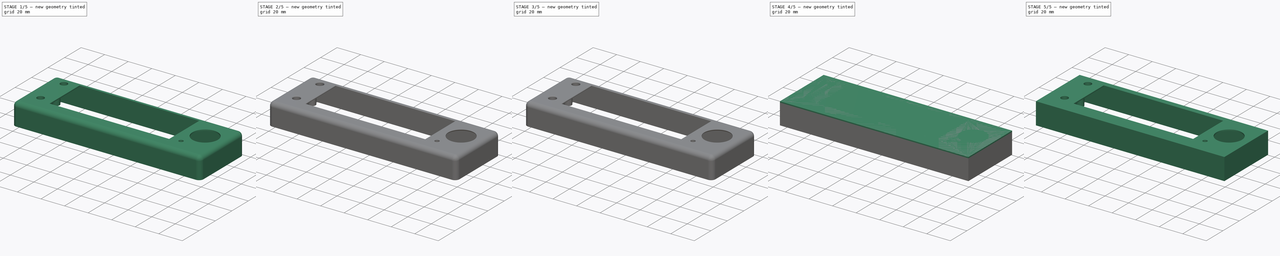
[diagram: build sequence overview — one tinted view per stage of 5, left to right]
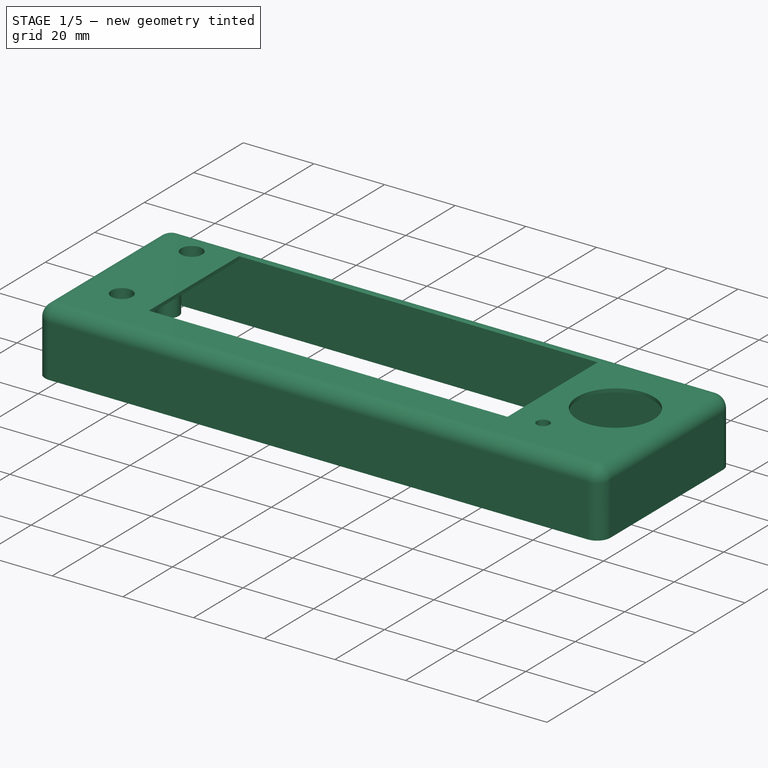
[diagram: stage 1 of 5 — iso view after this stage's code; geometry added in this stage tinted green]
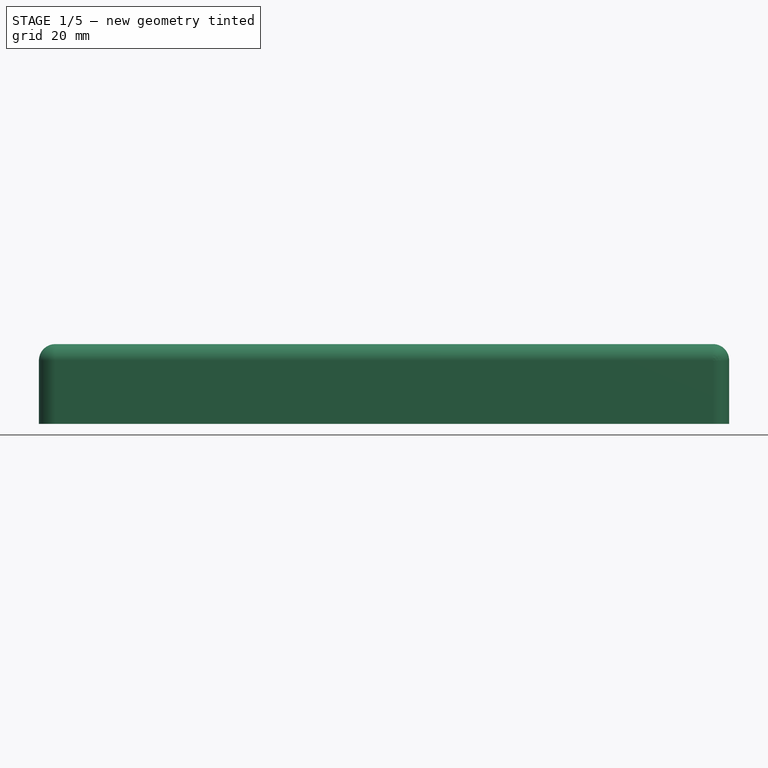
[diagram: stage 1 of 5 — front view after this stage's code; geometry added in this stage tinted green]
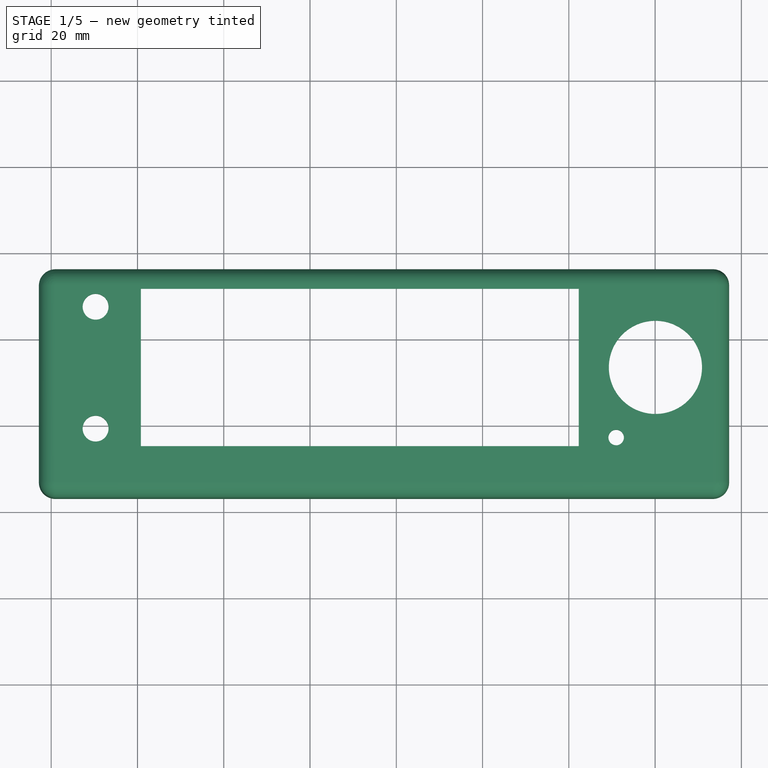
[diagram: stage 1 of 5 — top view after this stage's code; geometry added in this stage tinted green]
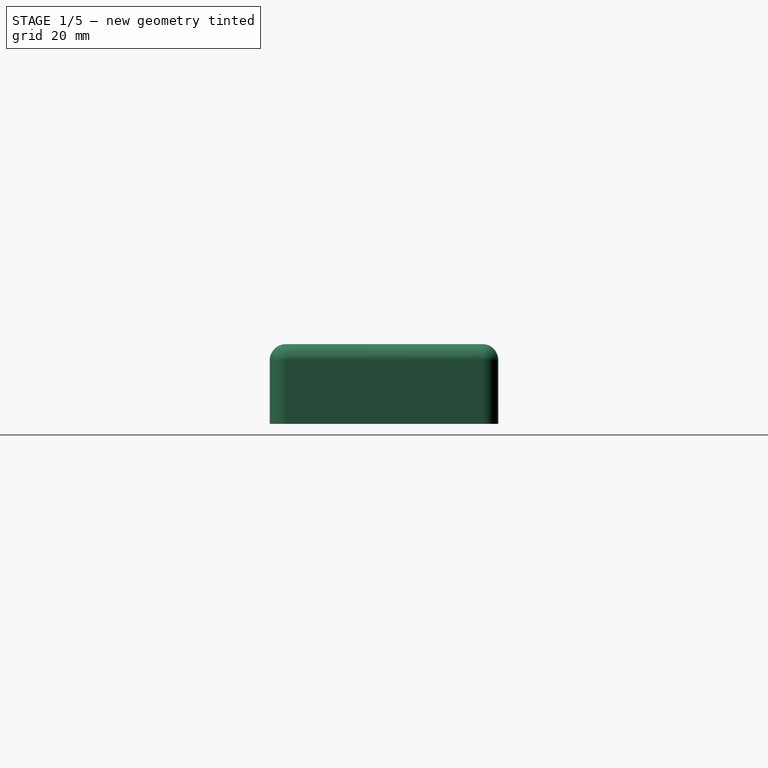
[diagram: stage 1 of 5 — right view after this stage's code; geometry added in this stage tinted green]
FCSTD DOCUMENT  (FreeCAD 0.15R4671 (Git))
Label: top_part
License: All rights reserved
LicenseURL: http://en.wikipedia.org/wiki/All_rights_reserved
objects: PartDesign::Fillet×16, Sketcher::SketchObject×9, PartDesign::Pad×6, PartDesign::Pocket×3, Part::Feature×3, PartDesign::Chamfer×2
note: 48 computed .brp shape members not serialized (recipe doc carries the construction recipe); baked Part::Feature solids carry a one-line shape summary decoded from their .brp

FEATURE [Part::Feature] Pocket003
  shape: bbox 160 x 53 x 18.5 mm, 81 faces (baked)
FEATURE [PartDesign::Fillet] Fillet
  Base = -> Pocket003 [Edge57,Edge158,Edge59,Edge159]
  Radius = 3.7
FEATURE [PartDesign::Fillet] Fillet001
  Base = -> Fillet [Edge24,Edge25,Edge3]
  Radius = 3.8
FEATURE [PartDesign::Fillet] Fillet002
  Base = -> Fillet001 [Edge1,Edge15,Edge13,Edge14,Edge16]
  Radius = 3.8
FEATURE [PartDesign::Fillet] Fillet003
  Base = -> Fillet002 [Edge27,Edge25,Edge39]
  Radius = 0.9
FEATURE [PartDesign::Fillet] Fillet004
  Base = -> Fillet003 [Edge60]
  Radius = 3
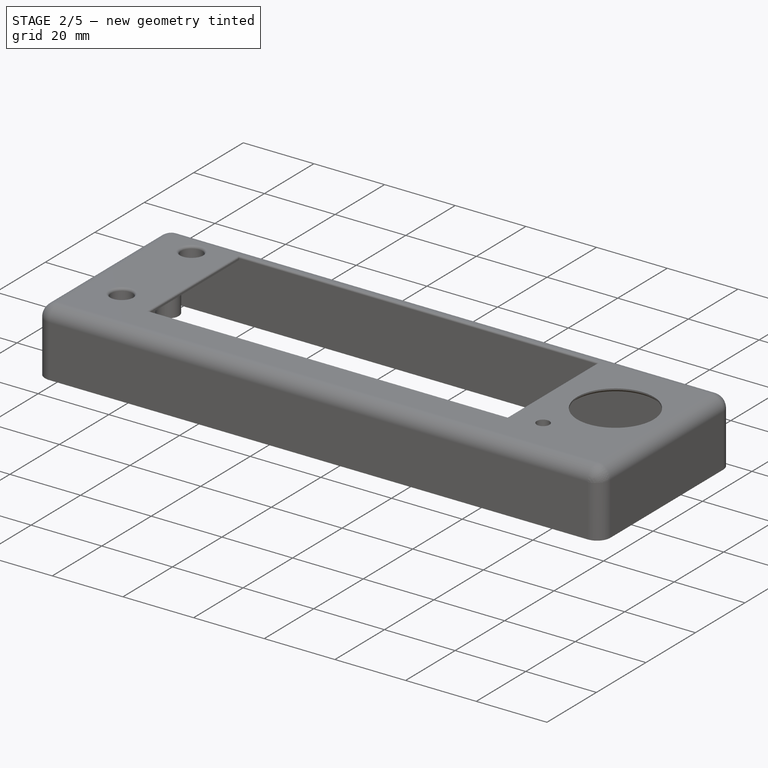
[diagram: stage 2 of 5 — iso view after this stage's code; geometry added in this stage tinted green]
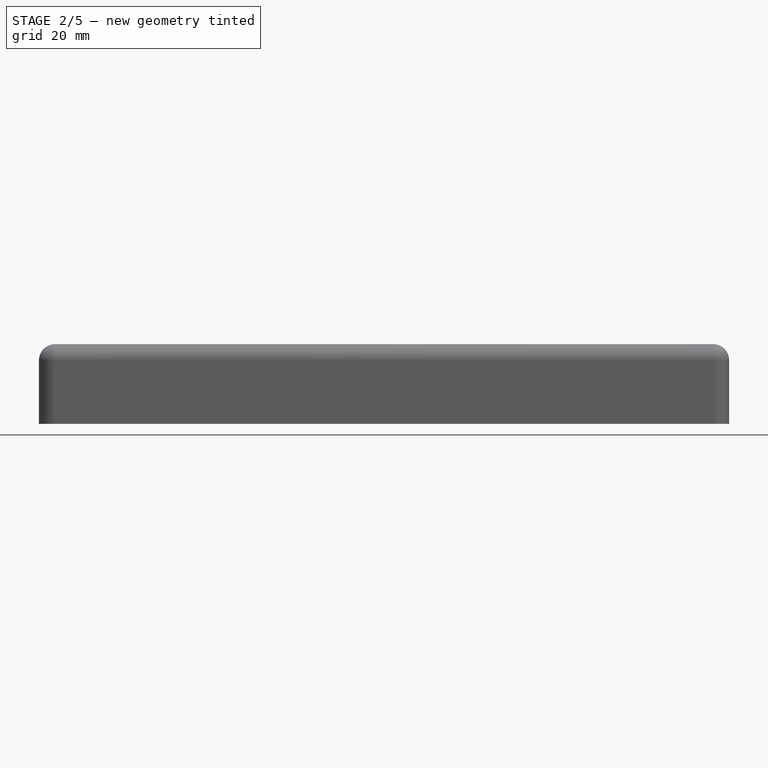
[diagram: stage 2 of 5 — front view after this stage's code; geometry added in this stage tinted green]
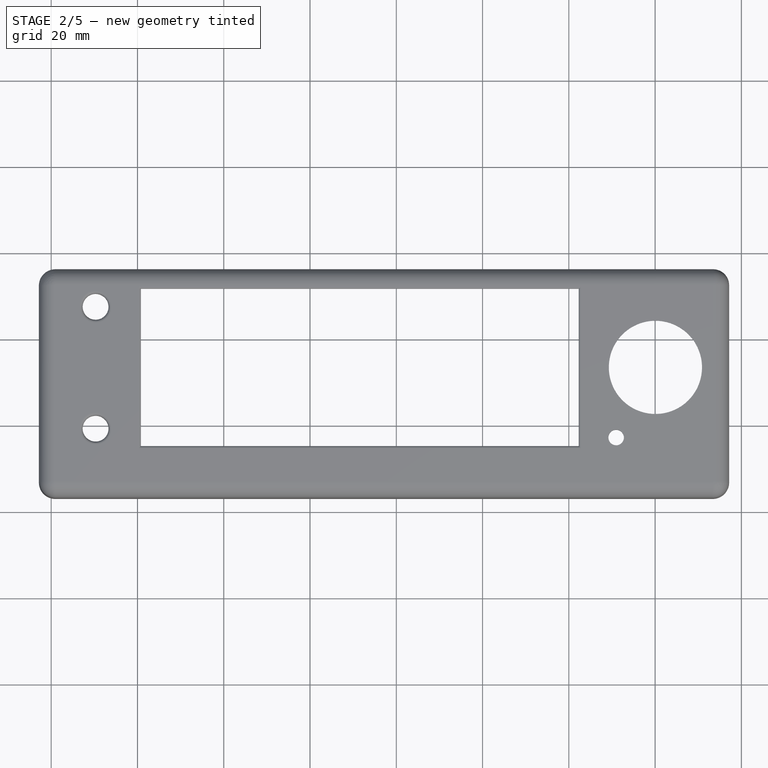
[diagram: stage 2 of 5 — top view after this stage's code; geometry added in this stage tinted green]
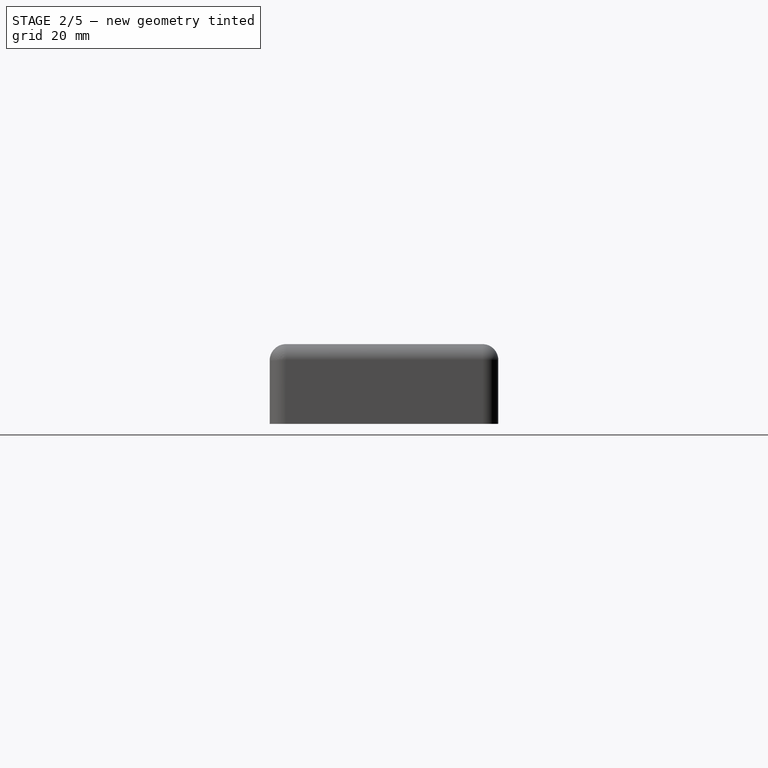
[diagram: stage 2 of 5 — right view after this stage's code; geometry added in this stage tinted green]
FEATURE [PartDesign::Fillet] Fillet005
  Base = -> Fillet004 [Edge46]
  Radius = 3
FEATURE [PartDesign::Chamfer] Chamfer
  Base = -> Fillet005 [Edge34]
  Size = 0.6
FEATURE [PartDesign::Fillet] Fillet006
  Base = -> Chamfer [Edge123,Edge127,Edge125,Edge120]
  Radius = 0.5
FEATURE [PartDesign::Fillet] Fillet007
  Base = -> Fillet006 [Edge59,Edge60]
  Radius = 0.7
FEATURE [PartDesign::Chamfer] Chamfer001
  Base = -> Fillet007 [Edge63,Edge64,Edge66]
  Size = 1
FEATURE [PartDesign::Fillet] Fillet008
  Base = -> Chamfer001 [Edge97]
  Radius = 1.5
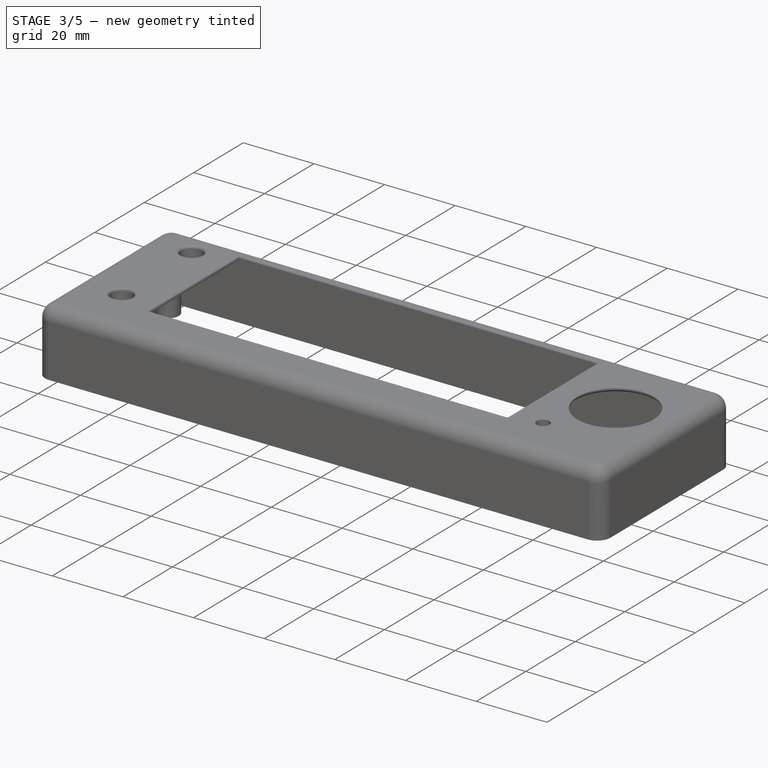
[diagram: stage 3 of 5 — iso view after this stage's code; geometry added in this stage tinted green]
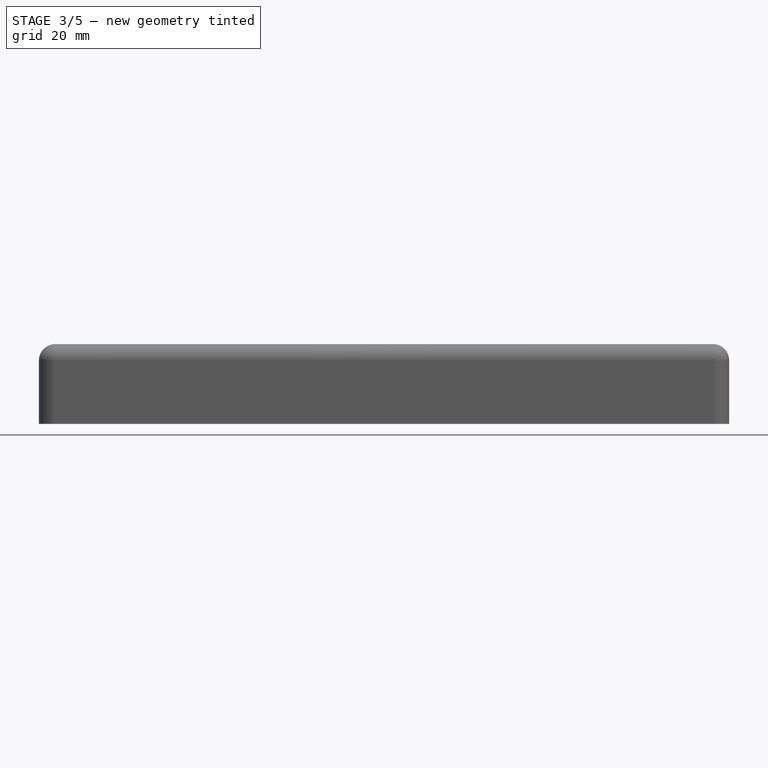
[diagram: stage 3 of 5 — front view after this stage's code; geometry added in this stage tinted green]
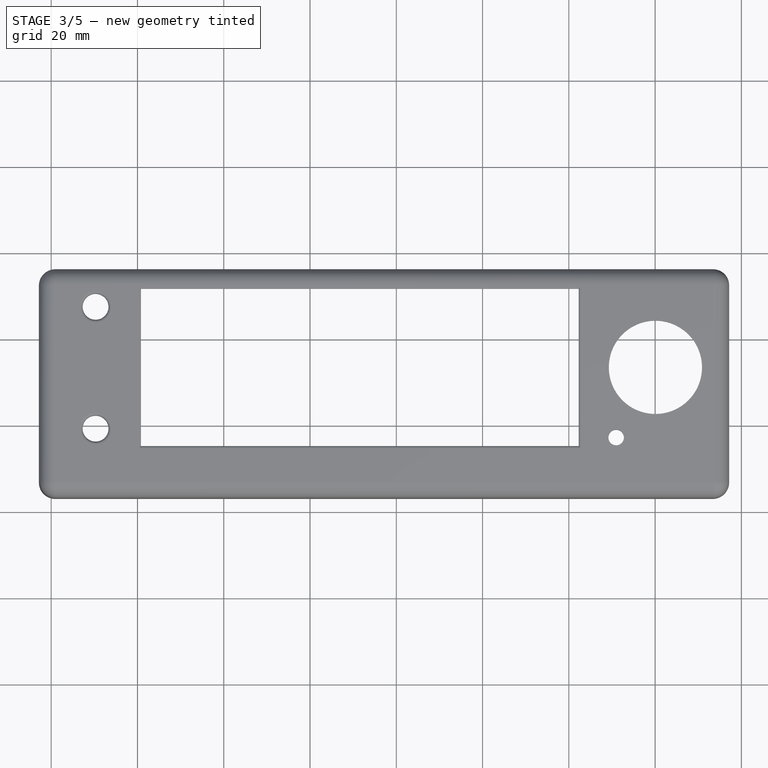
[diagram: stage 3 of 5 — top view after this stage's code; geometry added in this stage tinted green]
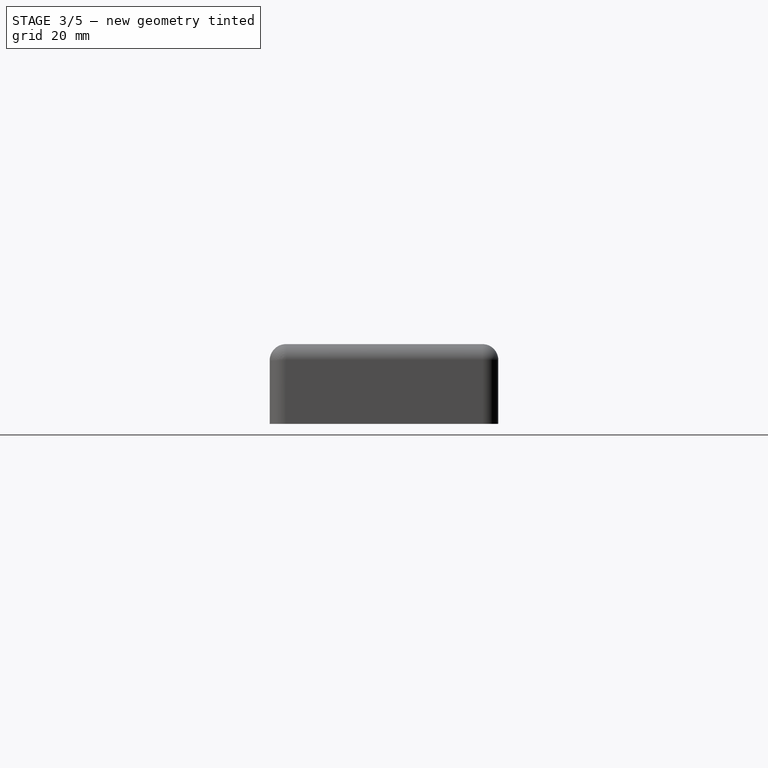
[diagram: stage 3 of 5 — right view after this stage's code; geometry added in this stage tinted green]
FEATURE [PartDesign::Fillet] Fillet009
  Base = -> Fillet008 [Edge26]
  Radius = 1.5
FEATURE [PartDesign::Fillet] Fillet010
  Base = -> Fillet009 [Edge9]
  Radius = 1.5
FEATURE [PartDesign::Fillet] Fillet011
  Base = -> Fillet010 [Edge64]
  Radius = 1.5
FEATURE [PartDesign::Fillet] Fillet012
  Base = -> Fillet011 [Edge80,Edge15]
  Radius = 1.5
FEATURE [PartDesign::Fillet] Fillet013
  Base = -> Fillet012 [Edge30]
  Radius = 1.5
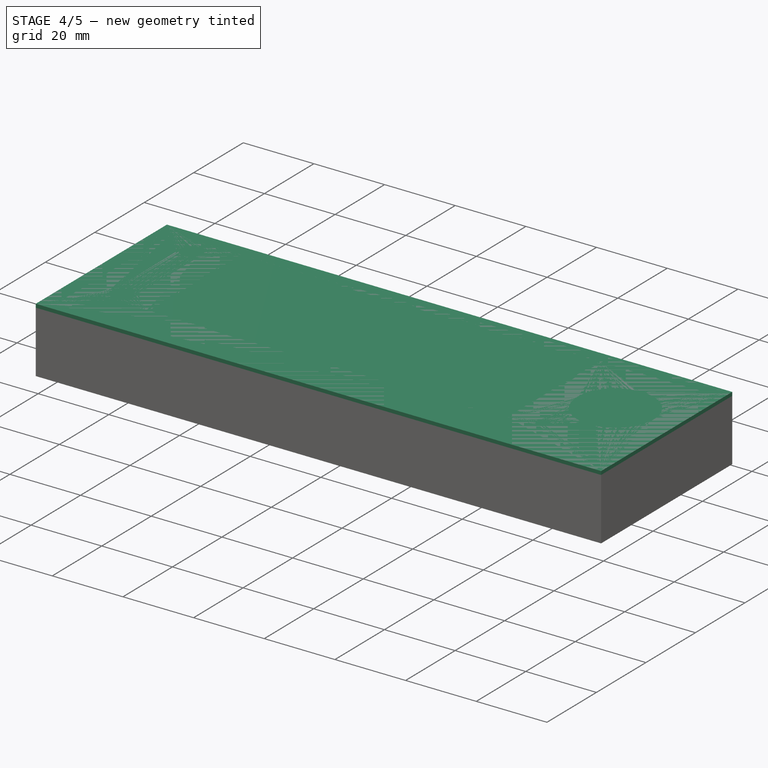
[diagram: stage 4 of 5 — iso view after this stage's code; geometry added in this stage tinted green]
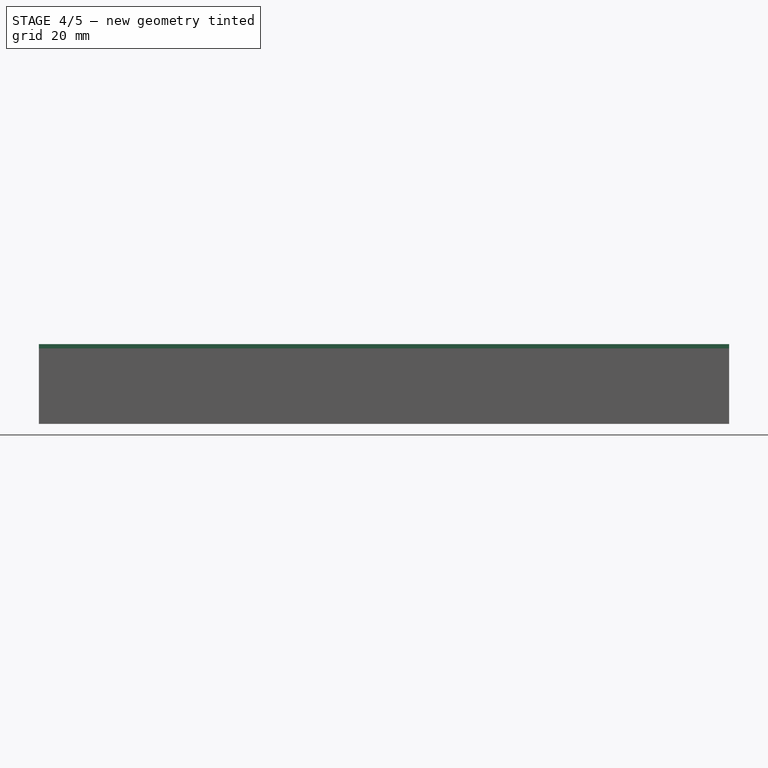
[diagram: stage 4 of 5 — front view after this stage's code; geometry added in this stage tinted green]
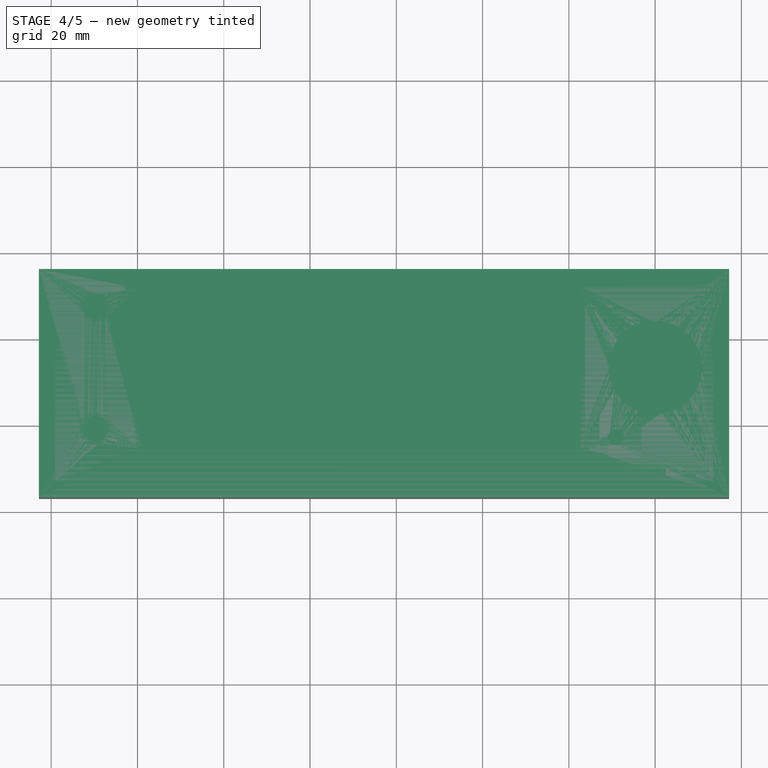
[diagram: stage 4 of 5 — top view after this stage's code; geometry added in this stage tinted green]
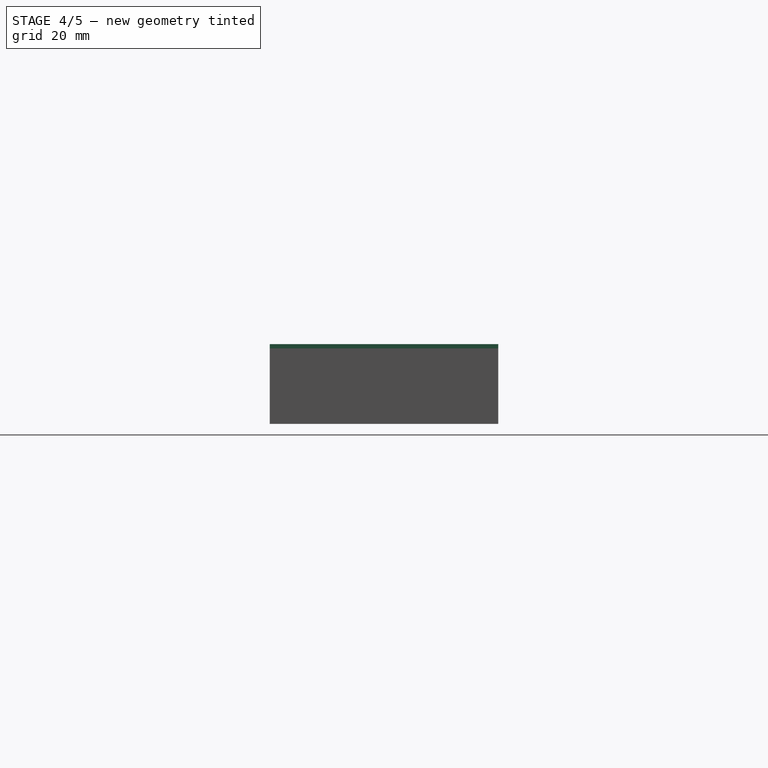
[diagram: stage 4 of 5 — right view after this stage's code; geometry added in this stage tinted green]
FEATURE [Sketcher::SketchObject] Sketch
  sketch-geometry (8):
    g0: LineSegment StartX=-62.8489 StartY=16.0986 StartZ=0 EndX=97.1511 EndY=16.0986 EndZ=0
    g1: LineSegment StartX=97.1511 StartY=16.0986 StartZ=0 EndX=97.1511 EndY=-36.9014 EndZ=0
    g2: LineSegment StartX=97.1511 StartY=-36.9014 StartZ=0 EndX=-62.8489 EndY=-36.9014 EndZ=0
    g3: LineSegment StartX=-62.8489 StartY=-36.9014 StartZ=0 EndX=-62.8489 EndY=16.0986 EndZ=0
    g4: LineSegment StartX=-60.8489 StartY=14.0986 StartZ=0 EndX=95.1511 EndY=14.0986 EndZ=0
    g5: LineSegment StartX=95.1511 StartY=14.0986 StartZ=0 EndX=95.1511 EndY=-34.9014 EndZ=0
    g6: LineSegment StartX=95.1511 StartY=-34.9014 StartZ=0 EndX=-60.8489 EndY=-34.9014 EndZ=0
    g7: LineSegment StartX=-60.8489 StartY=-34.9014 StartZ=0 EndX=-60.8489 EndY=14.0986 EndZ=0
  constraints (22):
    c: Coincident(g0,g1)
    c: Coincident(g1,g2)
    c: Coincident(g2,g3)
    c: Coincident(g3,g0)
    c: Horizontal(g0)
    c: Horizontal(g2)
    c: Vertical(g1)
    c: Vertical(g3)
    c: Distance(g0) = 160
    c: Distance(g3) = 53
    c: Coincident(g4,g5)
    c: Coincident(g5,g6)
    c: Coincident(g6,g7)
    c: Coincident(g7,g4)
    c: Horizontal(g4)
    c: Horizontal(g6)
    c: Vertical(g5)
    c: Vertical(g7)
    c: DistanceX(g4,g0) = -2
    c: DistanceY(g4,g0) = 2
    c: Distance(g4) = 156
    c: Distance(g5) = 49
FEATURE [PartDesign::Pad] Pad
  Length = 17.5
  Length2 = 100
  Sketch = -> Sketch
  Type = 0
FEATURE [Sketcher::SketchObject] Sketch001
  ExternalGeometry = -> [Pad]
  Placement = pos=(0,0,17.5) rot=(0,0,1;0rad)
  Support = -> Pad [Face10]
  sketch-geometry (4):
    g0: LineSegment StartX=-62.8489 StartY=16.0986 StartZ=0 EndX=97.1511 EndY=16.0986 EndZ=0
    g1: LineSegment StartX=97.1511 StartY=16.0986 StartZ=0 EndX=97.1511 EndY=-36.9014 EndZ=0
    g2: LineSegment StartX=97.1511 StartY=-36.9014 StartZ=0 EndX=-62.8489 EndY=-36.9014 EndZ=0
    g3: LineSegment StartX=-62.8489 StartY=-36.9014 StartZ=0 EndX=-62.8489 EndY=16.0986 EndZ=0
  constraints (10):
    c: Coincident(g0,g1)
    c: Coincident(g1,g2)
    c: Coincident(g2,g3)
    c: Coincident(g3,g0)
    c: Horizontal(g0)
    c: Horizontal(g2)
    c: Vertical(g1)
    c: Vertical(g3)
    c: Coincident(g0,g-4)
    c: Coincident(g1,g-6)
FEATURE [PartDesign::Pad] Pad001
  Length = 1
  Length2 = 100
  Sketch = -> Sketch001
  Type = 0
FEATURE [Part::Feature] Pad004001  label="Pad005"
  shape: bbox 160 x 53 x 18.5 mm, 61 faces (baked)
FEATURE [Sketcher::SketchObject] Sketch009
  ExternalGeometry = -> [Pad004001]
  Placement = pos=(0,0,0) rot=(1,0,0;3.14159rad)
  Support = -> Pad004001 [Face54]
  sketch-geometry (16):
    g0: LineSegment StartX=-61.4989 StartY=1.90142 StartZ=0 EndX=-60.1989 EndY=1.90142 EndZ=0
    g1: LineSegment StartX=-60.1989 StartY=1.90142 StartZ=0 EndX=-60.1989 EndY=-11.0986 EndZ=0
    g2: LineSegment StartX=-60.1989 StartY=-11.0986 StartZ=0 EndX=-61.4989 EndY=-11.0986 EndZ=0
    g3: LineSegment StartX=-61.4989 StartY=-11.0986 StartZ=0 EndX=-61.4989 EndY=1.90142 EndZ=0
    g4: LineSegment StartX=-61.4989 StartY=31.9014 StartZ=0 EndX=-60.1989 EndY=31.9014 EndZ=0
    g5: LineSegment StartX=-60.1989 StartY=31.9014 StartZ=0 EndX=-60.1989 EndY=18.9014 EndZ=0
    g6: LineSegment StartX=-60.1989 StartY=18.9014 StartZ=0 EndX=-61.4989 EndY=18.9014 EndZ=0
    g7: LineSegment StartX=-61.4989 StartY=18.9014 StartZ=0 EndX=-61.4989 EndY=31.9014 EndZ=0
    g8: LineSegment StartX=94.5011 StartY=31.9014 StartZ=0 EndX=95.8011 EndY=31.9014 EndZ=0
    g9: LineSegment StartX=95.8011 StartY=31.9014 StartZ=0 EndX=95.8011 EndY=18.9014 EndZ=0
    g10: LineSegment StartX=95.8011 StartY=18.9014 StartZ=0 EndX=94.5011 EndY=18.9014 EndZ=0
    g11: LineSegment StartX=94.5011 StartY=18.9014 StartZ=0 EndX=94.5011 EndY=31.9014 EndZ=0
    g12: LineSegment StartX=94.5011 StartY=1.90142 StartZ=0 EndX=95.8011 EndY=1.90142 EndZ=0
    g13: LineSegment StartX=95.8011 StartY=1.90142 StartZ=0 EndX=95.8011 EndY=-11.0986 EndZ=0
    g14: LineSegment StartX=95.8011 StartY=-11.0986 StartZ=0 EndX=94.5011 EndY=-11.0986 EndZ=0
    g15: LineSegment StartX=94.5011 StartY=-11.0986 StartZ=0 EndX=94.5011 EndY=1.90142 EndZ=0
  constraints (48):
    c: Coincident(g0,g1)
    c: Coincident(g1,g2)
    c: Coincident(g2,g3)
    c: Coincident(g3,g0)
    c: Horizontal(g0)
    c: Horizontal(g2)
    c: Vertical(g1)
    c: Vertical(g3)
    c: DistanceX(g2) = -1.3
    c: DistanceY(g1) = -13
    c: DistanceY(g1,g-4) = -1
    c: DistanceX(g2,g-4) = 0.65
    c: Coincident(g4,g5)
    c: Coincident(g5,g6)
    c: Coincident(g6,g7)
    c: Coincident(g7,g4)
    c: Horizontal(g4)
    c: Horizontal(g6)
    c: Vertical(g5)
    c: Vertical(g7)
    c: DistanceX(g6) = -1.3
    c: DistanceY(g5) = -13
    c: DistanceX(g4,g-6) = -0.65
    c: Coincident(g8,g9)
    c: Coincident(g9,g10)
    c: Coincident(g10,g11)
    c: Coincident(g11,g8)
    c: Horizontal(g8)
    c: Horizontal(g10)
    c: Vertical(g9)
    c: Vertical(g11)
    c: DistanceX(g10) = -1.3
    c: DistanceY(g11) = 13
    c: DistanceX(g8,g-9) = 0.65
    c: DistanceY(g-9,g8) = -1
    c: DistanceY(g4,g-6) = 1
    c: Coincident(g12,g13)
    c: Coincident(g13,g14)
    c: Coincident(g14,g15)
    c: Coincident(g15,g12)
    c: Horizontal(g12)
    c: Horizontal(g14)
    c: Vertical(g13)
    c: Vertical(g15)
    c: DistanceX(g14) = -1.3
    c: DistanceY(g13) = -13
    c: DistanceY(g12,g-12) = 1
    c: DistanceX(g12,g-12) = -0.65
FEATURE [PartDesign::Pocket] Pocket002
  Length = 7
  Sketch = -> Sketch009
  Type = 0
FEATURE [PartDesign::Fillet] Fillet014
  Base = -> Fillet013 [Edge94,Edge20]
  Radius = 1.5
FEATURE [PartDesign::Fillet] Fillet015
  Base = -> Fillet014 [Edge122,Edge32]
  Radius = 1.5
FEATURE [Sketcher::SketchObject] Sketch010
  ExternalGeometry = -> [Fillet015]
  Placement = pos=(0,0,1) rot=(1,0,0;3.14159rad)
  Support = -> Fillet015 [Face53]
  sketch-geometry (8):
    g0: Circle CenterX=-56.3589 CenterY=20.8964 CenterZ=0 NormalX=0 NormalY=0 NormalZ=1 Radius=0.9
    g1: Circle CenterX=-56.3589 CenterY=20.8964 CenterZ=0 NormalX=0 NormalY=0 NormalZ=1 Radius=3
    g2: Circle CenterX=-56.3589 CenterY=-7.35358 CenterZ=0 NormalX=0 NormalY=0 NormalZ=1 Radius=0.9
    g3: Circle CenterX=-56.3589 CenterY=-7.35358 CenterZ=0 NormalX=0 NormalY=0 NormalZ=1 Radius=3
    g4: Circle CenterX=80.1511 CenterY=22.3564 CenterZ=0 NormalX=0 NormalY=0 NormalZ=1 Radius=0.9
    g5: Circle CenterX=80.1511 CenterY=22.3564 CenterZ=0 NormalX=0 NormalY=0 NormalZ=1 Radius=3
    g6: Circle CenterX=89.6711 CenterY=-9.82358 CenterZ=0 NormalX=0 NormalY=0 NormalZ=1 Radius=0.9
    g7: Circle CenterX=89.6711 CenterY=-9.82358 CenterZ=0 NormalX=0 NormalY=0 NormalZ=1 Radius=3
  constraints (16):
    c: Coincident(g0,g-3)
    c: Radius(g0) = 0.9
    c: Coincident(g1,g0)
    c: Radius(g1) = 3
    c: Coincident(g2,g-4)
    c: Radius(g2) = 0.9
    c: Coincident(g3,g2)
    c: Radius(g3) = 3
    c: Coincident(g4,g-5)
    c: Radius(g4) = 0.9
    c: Coincident(g5,g4)
    c: Radius(g5) = 3
    c: Coincident(g6,g-6)
    c: Radius(g6) = 0.9
    c: Coincident(g7,g6)
    c: Radius(g7) = 3
FEATURE [PartDesign::Pad] Pad004002
  Length = 1
  Length2 = 100
  Sketch = -> Sketch010
  Type = 0
FEATURE [Part::Feature] Pad004002001  label="Pad004003"
  shape: bbox 160 x 53 x 18.5 mm, 132 faces (baked)
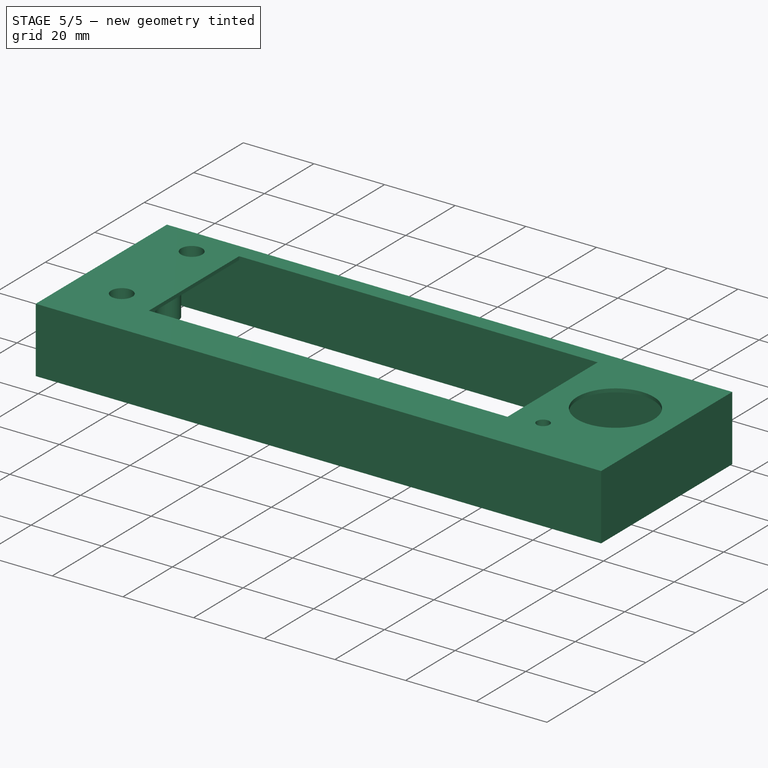
[diagram: stage 5 of 5 — iso view after this stage's code; geometry added in this stage tinted green]
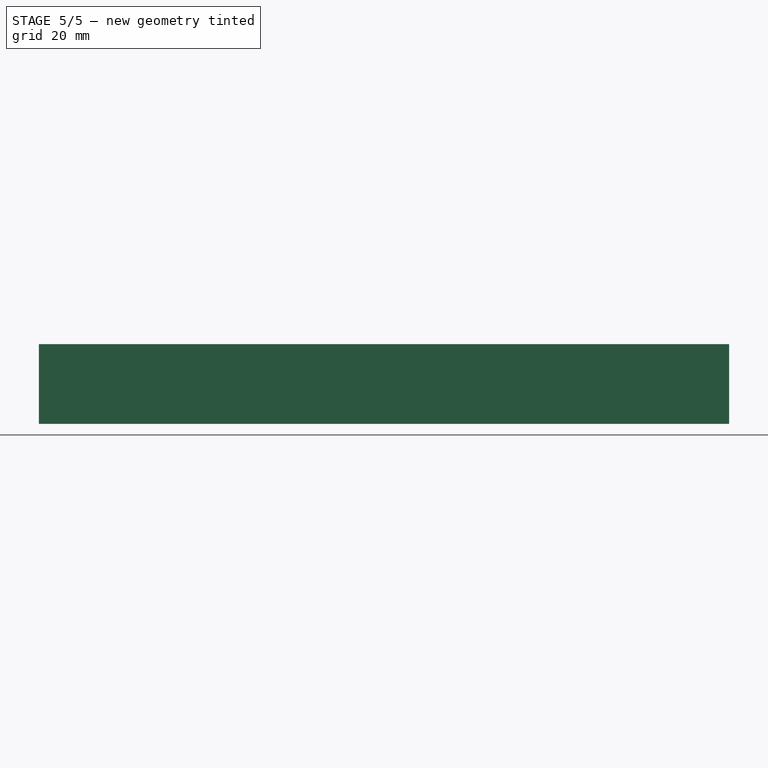
[diagram: stage 5 of 5 — front view after this stage's code; geometry added in this stage tinted green]
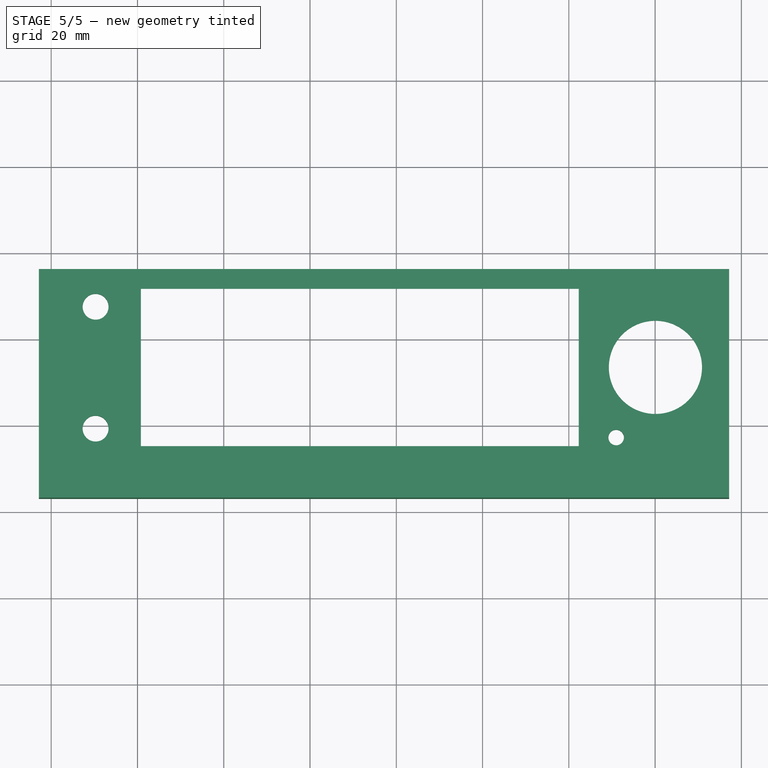
[diagram: stage 5 of 5 — top view after this stage's code; geometry added in this stage tinted green]
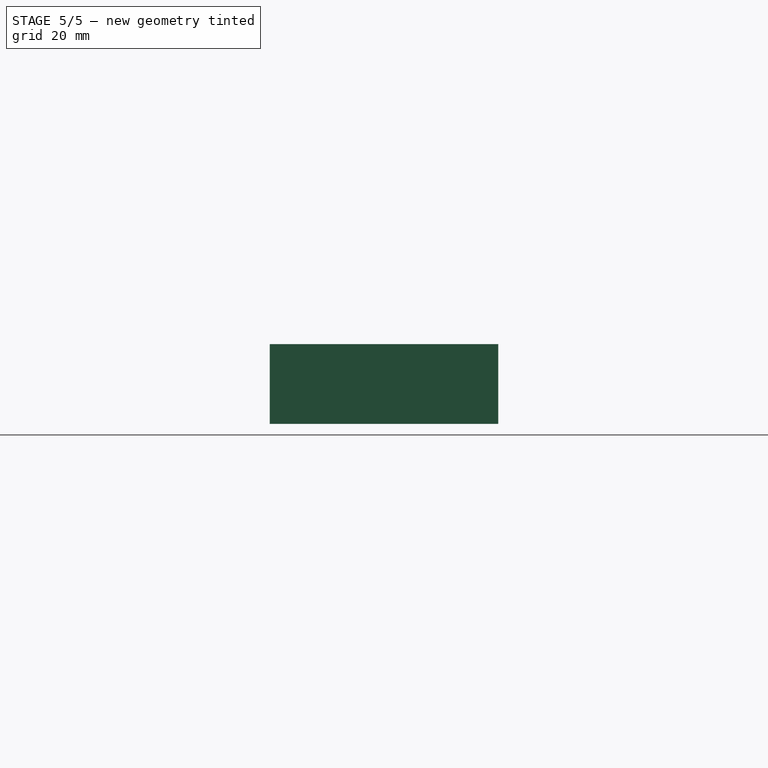
[diagram: stage 5 of 5 — right view after this stage's code; geometry added in this stage tinted green]
FEATURE [Sketcher::SketchObject] Sketch002
  ExternalGeometry = -> [Pad001]
  Placement = pos=(0,0,18.5) rot=(0,0,1;0rad)
  Support = -> Pad001 [Face15]
  sketch-geometry (8):
    g0: Circle CenterX=-49.7089 CenterY=7.35358 CenterZ=0 NormalX=0 NormalY=0 NormalZ=1 Radius=3
    g1: Circle CenterX=-49.7089 CenterY=-20.8964 CenterZ=0 NormalX=0 NormalY=0 NormalZ=1 Radius=3
    g2: LineSegment StartX=-39.1989 StartY=11.4986 StartZ=0 EndX=62.2911 EndY=11.4986 EndZ=0
    g3: LineSegment StartX=62.2911 StartY=11.4986 StartZ=0 EndX=62.2911 EndY=-24.9614 EndZ=0
    g4: LineSegment StartX=62.2911 StartY=-24.9614 StartZ=0 EndX=-39.1989 EndY=-24.9614 EndZ=0
    g5: LineSegment StartX=-39.1989 StartY=-24.9614 StartZ=0 EndX=-39.1989 EndY=11.4986 EndZ=0
    g6: Circle CenterX=80.0711 CenterY=-6.70642 CenterZ=0 NormalX=0 NormalY=0 NormalZ=1 Radius=10.8
    g7: Circle CenterX=70.9711 CenterY=-22.9664 CenterZ=0 NormalX=0 NormalY=0 NormalZ=1 Radius=1.8
  constraints (24):
    c: DistanceX(g0,g-4) = -13.14
    c: DistanceY(g-4,g0) = -8.745
    c: DistanceY(g1,g0) = 28.25
    c: DistanceX(g1,g0) = 0
    c: Radius(g0) = 3
    c: Radius(g1) = 3
    c: Coincident(g2,g3)
    c: Coincident(g3,g4)
    c: Coincident(g4,g5)
    c: Coincident(g5,g2)
    c: Horizontal(g2)
    c: Horizontal(g4)
    c: Vertical(g3)
    c: Vertical(g5)
    c: Distance(g5) = 36.46
    c: DistanceY(g1,g4) = -4.065
    c: Distance(g2) = 101.49
    c: DistanceX(g-4,g2) = 23.65
    c: DistanceY(g6,g-6) = 22.805
    c: DistanceX(g6,g-6) = 17.08
    c: Radius(g6) = 10.8
    c: DistanceY(g7,g6) = 16.26
    c: DistanceX(g7,g6) = 9.1
    c: Radius(g7) = 1.8
FEATURE [PartDesign::Pocket] Pocket
  Length = 5
  Sketch = -> Sketch002
  Type = 1
FEATURE [Sketcher::SketchObject] Sketch003
  ExternalGeometry = -> [Pocket]
  Placement = pos=(-62.8489,0,0) rot=(0.57735,-0.57735,-0.57735;2.0944rad)
  Support = -> Pocket [Face5]
  sketch-geometry (4):
    g0: LineSegment StartX=3.91642 StartY=12 StartZ=0 EndX=17.9164 EndY=12 EndZ=0
    g1: LineSegment StartX=17.9164 StartY=12 StartZ=0 EndX=17.9164 EndY=0 EndZ=0
    g2: LineSegment StartX=17.9164 StartY=0 StartZ=0 EndX=3.91642 EndY=0 EndZ=0
    g3: LineSegment StartX=3.91642 StartY=0 StartZ=0 EndX=3.91642 EndY=12 EndZ=0
  constraints (12):
    c: Coincident(g0,g1)
    c: Coincident(g1,g2)
    c: Coincident(g2,g3)
    c: Coincident(g3,g0)
    c: Horizontal(g0)
    c: Horizontal(g2)
    c: Vertical(g1)
    c: Vertical(g3)
    c: DistanceX(g0) = 14
    c: DistanceY(g3) = 12
    c: DistanceY(g-5,g2) = 0
    c: DistanceX(g2,g-5) = -20.015
FEATURE [PartDesign::Pocket] Pocket001
  Length = 5
  Sketch = -> Sketch003
  Type = 0
FEATURE [Sketcher::SketchObject] Sketch005
  ExternalGeometry = -> [Pocket001]
  Placement = pos=(0,0,17.5) rot=(1,0,0;3.14159rad)
  Support = -> Pocket001 [Face17]
  sketch-geometry (8):
    g0: Circle CenterX=80.1511 CenterY=22.3564 CenterZ=0 NormalX=0 NormalY=0 NormalZ=1 Radius=3
    g1: Circle CenterX=89.6711 CenterY=-9.82358 CenterZ=0 NormalX=0 NormalY=0 NormalZ=1 Radius=3
    g2: Circle CenterX=-56.3589 CenterY=20.8964 CenterZ=0 NormalX=0 NormalY=0 NormalZ=1 Radius=3
    g3: Circle CenterX=-56.3589 CenterY=-7.35358 CenterZ=0 NormalX=0 NormalY=0 NormalZ=1 Radius=3
    g4: Circle CenterX=-56.3589 CenterY=20.8964 CenterZ=0 NormalX=0 NormalY=0 NormalZ=1 Radius=0.9
    g5: Circle CenterX=-56.3589 CenterY=-7.35358 CenterZ=0 NormalX=0 NormalY=0 NormalZ=1 Radius=0.9
    g6: Circle CenterX=80.1511 CenterY=22.3564 CenterZ=0 NormalX=0 NormalY=0 NormalZ=1 Radius=0.9
    g7: Circle CenterX=89.6711 CenterY=-9.82358 CenterZ=0 NormalX=0 NormalY=0 NormalZ=1 Radius=0.9
  constraints (20):
    c: DistanceY(g0,g-8) = -15.65
    c: DistanceX(g0,g-8) = -0.08
    c: DistanceY(g-8,g1) = -16.53
    c: DistanceX(g1,g-8) = -9.6
    c: DistanceX(g2,g-9) = 6.65
    c: DistanceY(g2,g-9) = 0
    c: DistanceX(g-10,g3) = -6.65
    c: DistanceY(g-10,g3) = 0
    c: Radius(g2) = 3
    c: Radius(g3) = 3
    c: Radius(g0) = 3
    c: Radius(g1) = 3
    c: Coincident(g4,g2)
    c: Radius(g4) = 0.9
    c: Coincident(g5,g3)
    c: Radius(g5) = 0.9
    c: Coincident(g6,g0)
    c: Radius(g6) = 0.9
    c: Coincident(g7,g1)
    c: Radius(g7) = 0.9
FEATURE [PartDesign::Pad] Pad002
  Length = 17.5
  Length2 = 100
  Sketch = -> Sketch005
  Type = 0
FEATURE [Sketcher::SketchObject] Sketch006
  ExternalGeometry = -> [Pad002]
  Placement = pos=(0,0,17.5) rot=(1,0,0;3.14159rad)
  Support = -> Pad002 [Face17]
  sketch-geometry (6):
    g0: Circle CenterX=-49.7089 CenterY=20.8964 CenterZ=0 NormalX=0 NormalY=0 NormalZ=1 Radius=3
    g1: Circle CenterX=-49.7089 CenterY=20.8964 CenterZ=0 NormalX=0 NormalY=0 NormalZ=1 Radius=4
    g2: Circle CenterX=-49.7089 CenterY=-7.35358 CenterZ=0 NormalX=0 NormalY=0 NormalZ=1 Radius=3
    g3: Circle CenterX=-49.7089 CenterY=-7.35358 CenterZ=0 NormalX=0 NormalY=0 NormalZ=1 Radius=4
    g4: Circle CenterX=70.9711 CenterY=22.9664 CenterZ=0 NormalX=0 NormalY=0 NormalZ=1 Radius=1.8
    g5: Circle CenterX=70.9711 CenterY=22.9664 CenterZ=0 NormalX=0 NormalY=0 NormalZ=1 Radius=3
  constraints (12):
    c: Coincident(g0,g-3)
    c: Radius(g0) = 3
    c: Coincident(g1,g0)
    c: Coincident(g2,g-4)
    c: Radius(g2) = 3
    c: Coincident(g3,g2)
    c: Radius(g3) = 4
    c: Radius(g1) = 4
    c: Coincident(g4,g-5)
    c: Radius(g4) = 1.8
    c: Coincident(g5,g4)
    c: Radius(g5) = 3
FEATURE [PartDesign::Pad] Pad003
  Length = 3
  Length2 = 100
  Sketch = -> Sketch006
  Type = 0
FEATURE [Sketcher::SketchObject] Sketch007
  ExternalGeometry = -> [Pad003]
  Placement = pos=(0,0,17.5) rot=(1,0,0;3.14159rad)
  Support = -> Pad003 [Face17]
  sketch-geometry (16):
    g0: LineSegment StartX=-60.8489 StartY=2.90142 StartZ=0 EndX=-59.0589 EndY=2.90142 EndZ=0
    g1: LineSegment StartX=-59.0589 StartY=2.90142 StartZ=0 EndX=-59.0589 EndY=-12.0986 EndZ=0
    g2: LineSegment StartX=-59.0589 StartY=-12.0986 StartZ=0 EndX=-60.8489 EndY=-12.0986 EndZ=0
    g3: LineSegment StartX=-60.8489 StartY=-12.0986 StartZ=0 EndX=-60.8489 EndY=2.90142 EndZ=0
    g4: LineSegment StartX=-60.8489 StartY=32.9014 StartZ=0 EndX=-59.0589 EndY=32.9014 EndZ=0
    g5: LineSegment StartX=-59.0589 StartY=32.9014 StartZ=0 EndX=-59.0589 EndY=17.9014 EndZ=0
    g6: LineSegment StartX=-59.0589 StartY=17.9014 StartZ=0 EndX=-60.8489 EndY=17.9014 EndZ=0
    g7: LineSegment StartX=-60.8489 StartY=17.9014 StartZ=0 EndX=-60.8489 EndY=32.9014 EndZ=0
    g8: LineSegment StartX=95.1511 StartY=-12.0986 StartZ=0 EndX=93.2711 EndY=-12.0986 EndZ=0
    g9: LineSegment StartX=93.2711 StartY=-12.0986 StartZ=0 EndX=93.2711 EndY=2.90142 EndZ=0
    g10: LineSegment StartX=93.2711 StartY=2.90142 StartZ=0 EndX=95.1511 EndY=2.90142 EndZ=0
    g11: LineSegment StartX=95.1511 StartY=2.90142 StartZ=0 EndX=95.1511 EndY=-12.0986 EndZ=0
    g12: LineSegment StartX=95.1511 StartY=32.9014 StartZ=0 EndX=93.2711 EndY=32.9014 EndZ=0
    g13: LineSegment StartX=93.2711 StartY=32.9014 StartZ=0 EndX=93.2711 EndY=17.9014 EndZ=0
    g14: LineSegment StartX=93.2711 StartY=17.9014 StartZ=0 EndX=95.1511 EndY=17.9014 EndZ=0
    g15: LineSegment StartX=95.1511 StartY=17.9014 StartZ=0 EndX=95.1511 EndY=32.9014 EndZ=0
  constraints (37):
    c: Coincident(g0,g1)
    c: Coincident(g1,g2)
    c: Coincident(g2,g3)
    c: Coincident(g3,g0)
    c: Horizontal(g0)
    c: Horizontal(g2)
    c: Vertical(g1)
    c: Vertical(g3)
    c: DistanceY(g1) = -15
    c: Coincident(g4,g5)
    c: Coincident(g5,g6)
    c: Coincident(g6,g7)
    c: Coincident(g7,g4)
    c: Horizontal(g4)
    c: Horizontal(g6)
    c: Vertical(g5)
    c: Vertical(g7)
    c: DistanceY(g5) = -15
    c: Coincident(g8,g9)
    c: Coincident(g9,g10)
    c: Coincident(g10,g11)
    c: Coincident(g11,g8)
    c: Horizontal(g8)
    c: Horizontal(g10)
    c: Vertical(g9)
    c: Vertical(g11)
    c: DistanceY(g9) = 15
    c: Coincident(g12,g13)
    c: Coincident(g13,g14)
    c: Coincident(g14,g15)
    c: Coincident(g15,g12)
    c: Horizontal(g12)
    c: Horizontal(g14)
    c: Vertical(g13)
    c: Vertical(g15)
    c: DistanceY(g13) = -15
    c: DistanceX(g14) = 1.88
FEATURE [PartDesign::Pad] Pad004
  Length = 17.5
  Length2 = 100
  Sketch = -> Sketch007
  Type = 0
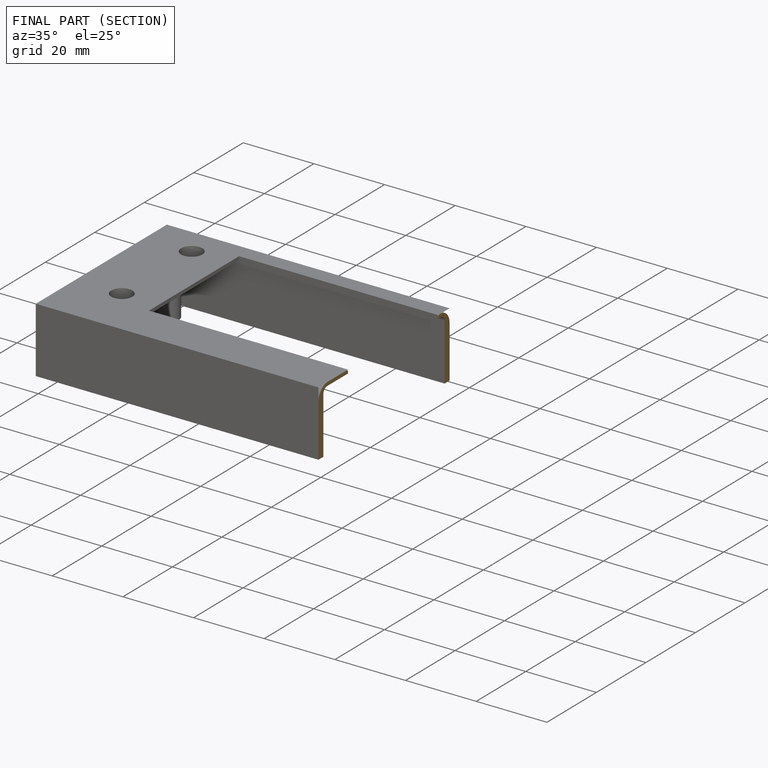
[diagram: finished part — half-section view (interior)]
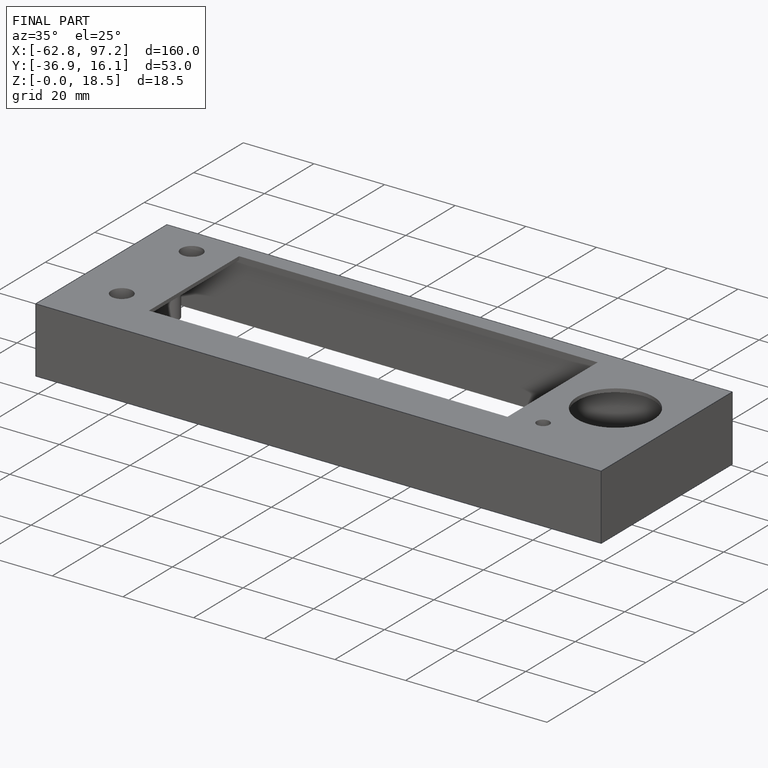
[diagram: finished part — iso view with bounding-box wireframe]
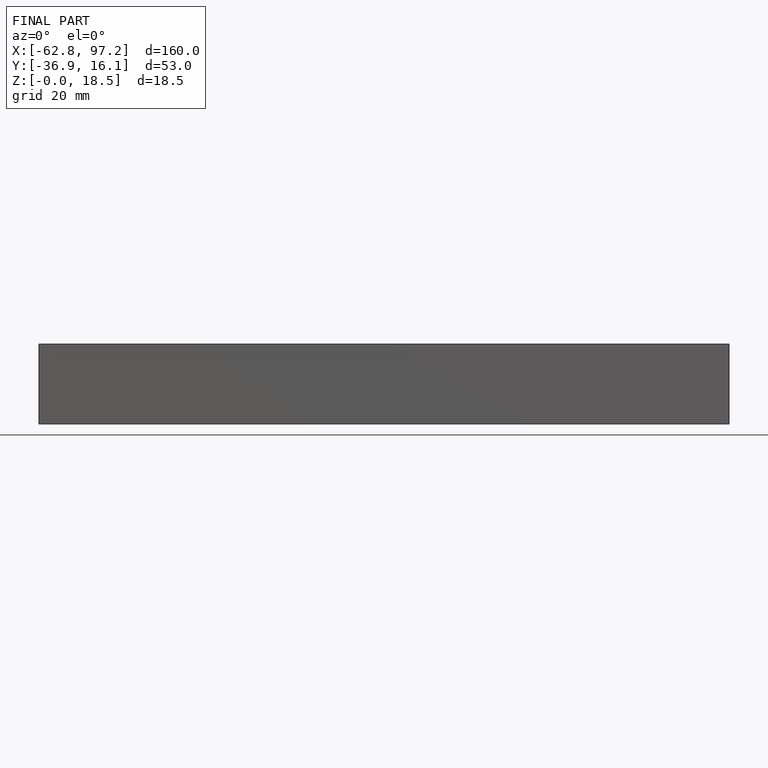
[diagram: finished part — front view with bounding-box wireframe]
